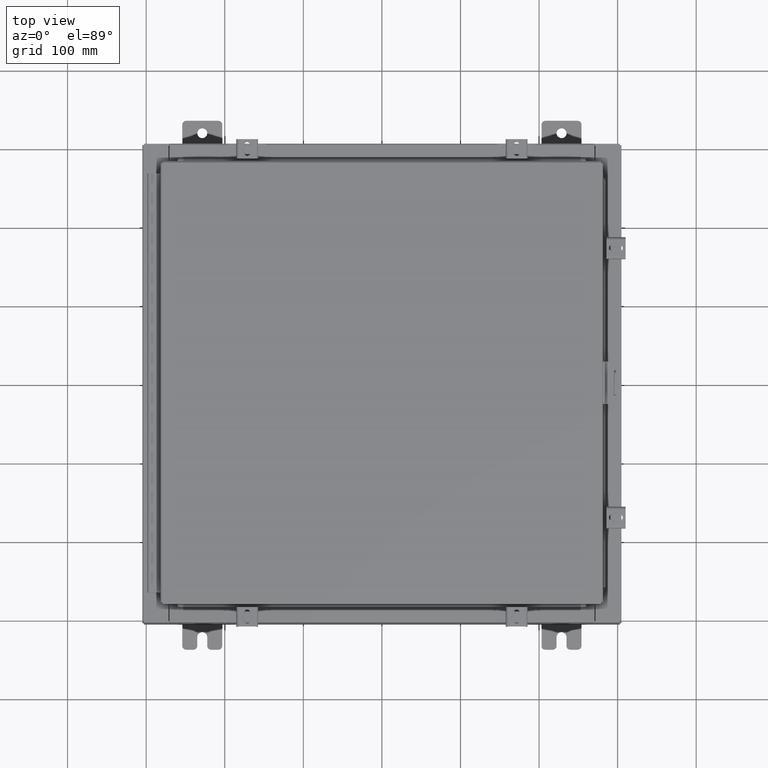
[diagram: clean part render]
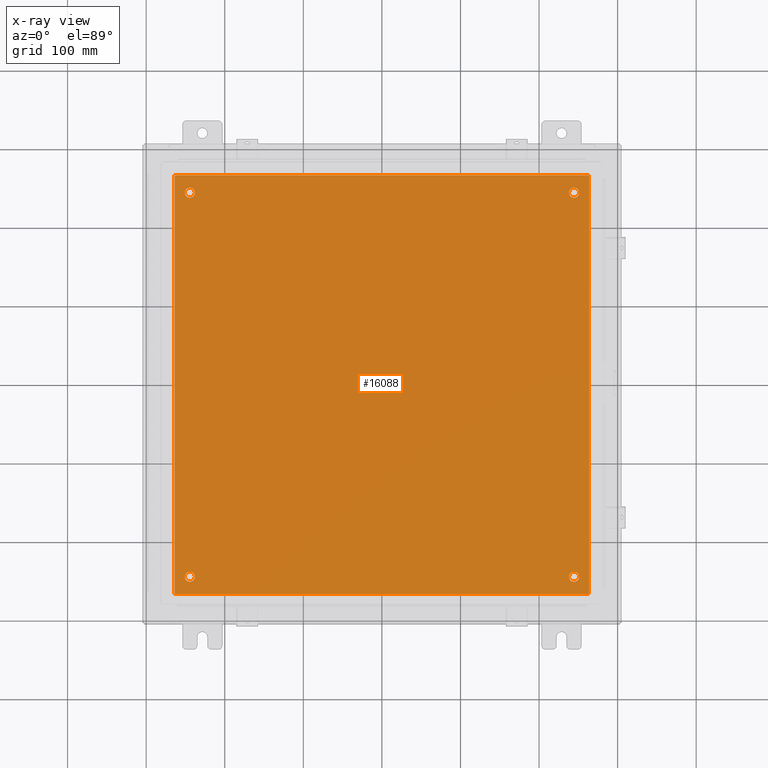
[diagram: x-ray — body ghosted, one internal face saturated and labeled with its STEP entity id]
A machine part, top view, then the same camera in x-ray: the body is ghosted and one INTERNAL B-rep face — a face not visible from any outside direction — is saturated and labeled: STEP entity #16088.
In plain terms, the highlighted planar face has unit normal (0, 0, -1).
Its self-contained STEP definition (entity closure, byte-faithful):
#126 = VERTEX_POINT ( 'NONE', #19873 ) ;
#650 = PLANE ( 'NONE',  #6433 ) ;
#888 = VERTEX_POINT ( 'NONE', #18619 ) ;
#1065 = DIRECTION ( 'NONE',  ( -0.0000000000000000000, -0.0000000000000000000, 1.000000000000000000 ) ) ;
#1261 = VERTEX_POINT ( 'NONE', #32632 ) ;
#1742 = VERTEX_POINT ( 'NONE', #11070 ) ;
#1980 = AXIS2_PLACEMENT_3D ( 'NONE', #3893, #21658, #6454 ) ;
#2286 = CIRCLE ( 'NONE', #20937, 0.2499999999999976100 ) ;
#3196 = CARTESIAN_POINT ( 'NONE',  ( 0.0000000000000000000, 0.0000000000000000000, -0.1040000000000000400 ) ) ;
#3399 = ORIENTED_EDGE ( 'NONE', *, *, #9670, .T. ) ;
#3844 = AXIS2_PLACEMENT_3D ( 'NONE', #28603, #13329, #31146 ) ;
#3893 = CARTESIAN_POINT ( 'NONE',  ( -9.625000000000005300, 9.625000000000001800, -0.1040000000000000400 ) ) ;
#3966 = FACE_BOUND ( 'NONE', #8853, .T. ) ;
#4270 = DIRECTION ( 'NONE',  ( -1.000000000000000000, -0.0000000000000000000, -0.0000000000000000000 ) ) ;
#4380 = ORIENTED_EDGE ( 'NONE', *, *, #22917, .T. ) ;
#4711 = CARTESIAN_POINT ( 'NONE',  ( 10.38300000000000100, -10.50000000000000200, -0.1040000000000008600 ) ) ;
#4780 = FACE_BOUND ( 'NONE', #27424, .T. ) ;
#4933 = VERTEX_POINT ( 'NONE', #21523 ) ;
#5140 = EDGE_CURVE ( 'NONE', #126, #9513, #23620, .T. ) ;
#5600 = VECTOR ( 'NONE', #4270, 39.37007874015748100 ) ;
#5607 = CARTESIAN_POINT ( 'NONE',  ( -10.50000000000000200, -10.50000000000000000, -0.1040000000000000400 ) ) ;
#5678 = CIRCLE ( 'NONE', #31960, 0.2499999999999987000 ) ;
#6153 = CIRCLE ( 'NONE', #3844, 0.2499999999999976100 ) ;
#6433 = AXIS2_PLACEMENT_3D ( 'NONE', #3196, #31080, #23520 ) ;
#6454 = DIRECTION ( 'NONE',  ( -1.000000000000000000, 0.0000000000000000000, 0.0000000000000000000 ) ) ;
#7451 = EDGE_CURVE ( 'NONE', #10873, #28369, #28827, .T. ) ;
#7521 = EDGE_CURVE ( 'NONE', #9828, #1261, #6153, .T. ) ;
#7935 = DIRECTION ( 'NONE',  ( -0.0000000000000000000, -0.0000000000000000000, 1.000000000000000000 ) ) ;
#7994 = DIRECTION ( 'NONE',  ( -0.0000000000000000000, -0.0000000000000000000, 1.000000000000000000 ) ) ;
#8853 = EDGE_LOOP ( 'NONE', ( #3399, #9553 ) ) ;
#9513 = VERTEX_POINT ( 'NONE', #17537 ) ;
#9553 = ORIENTED_EDGE ( 'NONE', *, *, #7451, .T. ) ;
#9670 = EDGE_CURVE ( 'NONE', #28369, #10873, #2286, .T. ) ;
#9693 = VECTOR ( 'NONE', #23372, 39.37007874015748100 ) ;
#9828 = VERTEX_POINT ( 'NONE', #32062 ) ;
#9994 = EDGE_CURVE ( 'NONE', #12074, #4933, #26505, .T. ) ;
#10104 = VECTOR ( 'NONE', #26660, 39.37007874015748100 ) ;
#10689 = FACE_BOUND ( 'NONE', #22058, .T. ) ;
#10873 = VERTEX_POINT ( 'NONE', #13732 ) ;
#10894 = LINE ( 'NONE', #16403, #10104 ) ;
#10912 = VERTEX_POINT ( 'NONE', #18980 ) ;
#11070 = CARTESIAN_POINT ( 'NONE',  ( -10.38299999999999900, -10.50000000000000000, -0.1040000000000031700 ) ) ;
#11268 = ORIENTED_EDGE ( 'NONE', *, *, #9994, .F. ) ;
#11601 = ORIENTED_EDGE ( 'NONE', *, *, #28082, .F. ) ;
#12066 = ORIENTED_EDGE ( 'NONE', *, *, #24670, .T. ) ;
#12074 = VERTEX_POINT ( 'NONE', #17956 ) ;
#12101 = EDGE_CURVE ( 'NONE', #9513, #126, #16853, .T. ) ;
#12241 = ORIENTED_EDGE ( 'NONE', *, *, #21496, .F. ) ;
#12366 = CIRCLE ( 'NONE', #24587, 0.2499999999999976100 ) ;
#12400 = DIRECTION ( 'NONE',  ( -0.0000000000000000000, -0.0000000000000000000, 1.000000000000000000 ) ) ;
#13329 = DIRECTION ( 'NONE',  ( -0.0000000000000000000, -0.0000000000000000000, 1.000000000000000000 ) ) ;
#13732 = CARTESIAN_POINT ( 'NONE',  ( 9.375000000000007100, 9.625000000000001800, -0.1040000000000000400 ) ) ;
#13746 = VECTOR ( 'NONE', #19939, 39.37007874015748100 ) ;
#14418 = CARTESIAN_POINT ( 'NONE',  ( -9.625000000000005300, 9.625000000000001800, -0.1040000000000000400 ) ) ;
#14690 = CARTESIAN_POINT ( 'NONE',  ( 9.625000000000005300, -9.625000000000001800, -0.1040000000000000400 ) ) ;
#15513 = ORIENTED_EDGE ( 'NONE', *, *, #5140, .T. ) ;
#15647 = LINE ( 'NONE', #5607, #9693 ) ;
#16088 = ADVANCED_FACE ( 'NONE', ( #4780, #16671, #3966, #10689, #30236 ), #650, .T. ) ;
#16244 = CARTESIAN_POINT ( 'NONE',  ( 9.625000000000005300, 9.625000000000001800, -0.1040000000000000400 ) ) ;
#16403 = CARTESIAN_POINT ( 'NONE',  ( -10.38299999999999900, 10.50000000000000400, -0.1040000000000031700 ) ) ;
#16418 = VERTEX_POINT ( 'NONE', #19968 ) ;
#16671 = FACE_BOUND ( 'NONE', #17646, .T. ) ;
#16853 = CIRCLE ( 'NONE', #27156, 0.2499999999999987000 ) ;
#16902 = CARTESIAN_POINT ( 'NONE',  ( -10.50000000000000000, 10.50000000000000200, -0.1040000000000000400 ) ) ;
#16995 = DIRECTION ( 'NONE',  ( -1.000000000000000000, 0.0000000000000000000, 0.0000000000000000000 ) ) ;
#17264 = DIRECTION ( 'NONE',  ( -1.000000000000000000, 0.0000000000000000000, 0.0000000000000000000 ) ) ;
#17537 = CARTESIAN_POINT ( 'NONE',  ( -9.875000000000005300, -9.625000000000001800, -0.1040000000000000400 ) ) ;
#17646 = EDGE_LOOP ( 'NONE', ( #31196, #30596 ) ) ;
#17956 = CARTESIAN_POINT ( 'NONE',  ( 10.38299999999999900, -10.50000000000000000, -0.1040000000000000400 ) ) ;
#18619 = CARTESIAN_POINT ( 'NONE',  ( -10.38299999999999900, 10.50000000000000400, -0.1040000000000031700 ) ) ;
#18818 = DIRECTION ( 'NONE',  ( -1.000000000000000000, 0.0000000000000000000, 0.0000000000000000000 ) ) ;
#18980 = CARTESIAN_POINT ( 'NONE',  ( -9.375000000000005300, 9.625000000000001800, -0.1040000000000000400 ) ) ;
#19837 = AXIS2_PLACEMENT_3D ( 'NONE', #23137, #7935, #25718 ) ;
#19873 = CARTESIAN_POINT ( 'NONE',  ( -9.375000000000005300, -9.625000000000001800, -0.1040000000000000400 ) ) ;
#19893 = AXIS2_PLACEMENT_3D ( 'NONE', #27650, #12400, #30218 ) ;
#19939 = DIRECTION ( 'NONE',  ( 0.0000000000000000000, 1.000000000000000000, 0.0000000000000000000 ) ) ;
#19968 = CARTESIAN_POINT ( 'NONE',  ( -9.875000000000005300, 9.625000000000001800, -0.1040000000000000400 ) ) ;
#20937 = AXIS2_PLACEMENT_3D ( 'NONE', #16244, #1065, #18818 ) ;
#21496 = EDGE_CURVE ( 'NONE', #888, #1742, #10894, .T. ) ;
#21523 = CARTESIAN_POINT ( 'NONE',  ( 10.38300000000000100, 10.50000000000000200, -0.1040000000000000400 ) ) ;
#21658 = DIRECTION ( 'NONE',  ( -0.0000000000000000000, -0.0000000000000000000, 1.000000000000000000 ) ) ;
#22058 = EDGE_LOOP ( 'NONE', ( #4380, #12066 ) ) ;
#22917 = EDGE_CURVE ( 'NONE', #10912, #16418, #5678, .T. ) ;
#23137 = CARTESIAN_POINT ( 'NONE',  ( 9.625000000000005300, 9.625000000000001800, -0.1040000000000000400 ) ) ;
#23199 = CARTESIAN_POINT ( 'NONE',  ( -9.625000000000005300, -9.625000000000001800, -0.1040000000000000400 ) ) ;
#23372 = DIRECTION ( 'NONE',  ( 1.000000000000000000, 0.0000000000000000000, 0.0000000000000000000 ) ) ;
#23520 = DIRECTION ( 'NONE',  ( -1.000000000000000000, 0.0000000000000000000, -0.0000000000000000000 ) ) ;
#23620 = CIRCLE ( 'NONE', #19893, 0.2499999999999987000 ) ;
#24275 = LINE ( 'NONE', #16902, #5600 ) ;
#24587 = AXIS2_PLACEMENT_3D ( 'NONE', #14690, #32532, #17264 ) ;
#24670 = EDGE_CURVE ( 'NONE', #16418, #10912, #25453, .T. ) ;
#25453 = CIRCLE ( 'NONE', #1980, 0.2499999999999987000 ) ;
#25718 = DIRECTION ( 'NONE',  ( -1.000000000000000000, 0.0000000000000000000, 0.0000000000000000000 ) ) ;
#25776 = DIRECTION ( 'NONE',  ( -1.000000000000000000, 0.0000000000000000000, 0.0000000000000000000 ) ) ;
#26505 = LINE ( 'NONE', #4711, #13746 ) ;
#26660 = DIRECTION ( 'NONE',  ( 0.0000000000000000000, -1.000000000000000000, 0.0000000000000000000 ) ) ;
#27156 = AXIS2_PLACEMENT_3D ( 'NONE', #23199, #7994, #25776 ) ;
#27424 = EDGE_LOOP ( 'NONE', ( #15513, #29893 ) ) ;
#27491 = EDGE_CURVE ( 'NONE', #1261, #9828, #12366, .T. ) ;
#27650 = CARTESIAN_POINT ( 'NONE',  ( -9.625000000000005300, -9.625000000000001800, -0.1040000000000000400 ) ) ;
#28082 = EDGE_CURVE ( 'NONE', #4933, #888, #24275, .T. ) ;
#28251 = ORIENTED_EDGE ( 'NONE', *, *, #32774, .F. ) ;
#28343 = CARTESIAN_POINT ( 'NONE',  ( 9.875000000000003600, 9.625000000000001800, -0.1040000000000000400 ) ) ;
#28369 = VERTEX_POINT ( 'NONE', #28343 ) ;
#28603 = CARTESIAN_POINT ( 'NONE',  ( 9.625000000000005300, -9.625000000000001800, -0.1040000000000000400 ) ) ;
#28827 = CIRCLE ( 'NONE', #19837, 0.2499999999999976100 ) ;
#29893 = ORIENTED_EDGE ( 'NONE', *, *, #12101, .T. ) ;
#30218 = DIRECTION ( 'NONE',  ( -1.000000000000000000, 0.0000000000000000000, 0.0000000000000000000 ) ) ;
#30236 = FACE_OUTER_BOUND ( 'NONE', #32426, .T. ) ;
#30596 = ORIENTED_EDGE ( 'NONE', *, *, #27491, .T. ) ;
#31080 = DIRECTION ( 'NONE',  ( 0.0000000000000000000, 0.0000000000000000000, -1.000000000000000000 ) ) ;
#31146 = DIRECTION ( 'NONE',  ( -1.000000000000000000, 0.0000000000000000000, 0.0000000000000000000 ) ) ;
#31196 = ORIENTED_EDGE ( 'NONE', *, *, #7521, .T. ) ;
#31960 = AXIS2_PLACEMENT_3D ( 'NONE', #14418, #32251, #16995 ) ;
#32062 = CARTESIAN_POINT ( 'NONE',  ( 9.875000000000003600, -9.625000000000001800, -0.1040000000000000400 ) ) ;
#32251 = DIRECTION ( 'NONE',  ( -0.0000000000000000000, -0.0000000000000000000, 1.000000000000000000 ) ) ;
#32426 = EDGE_LOOP ( 'NONE', ( #28251, #12241, #11601, #11268 ) ) ;
#32532 = DIRECTION ( 'NONE',  ( -0.0000000000000000000, -0.0000000000000000000, 1.000000000000000000 ) ) ;
#32632 = CARTESIAN_POINT ( 'NONE',  ( 9.375000000000007100, -9.625000000000001800, -0.1040000000000000400 ) ) ;
#32774 = EDGE_CURVE ( 'NONE', #1742, #12074, #15647, .T. ) ;